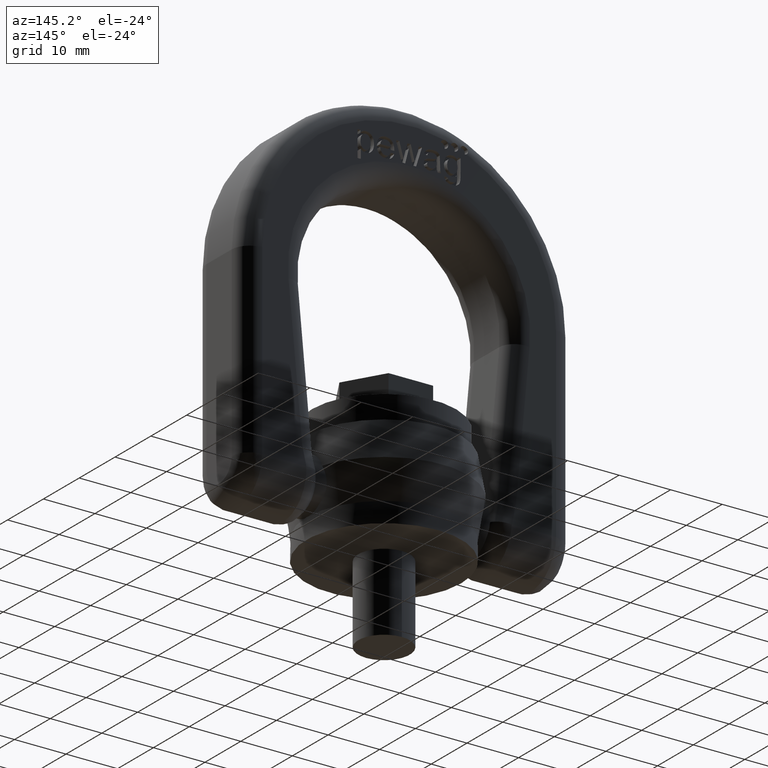
[diagram: clean part render]
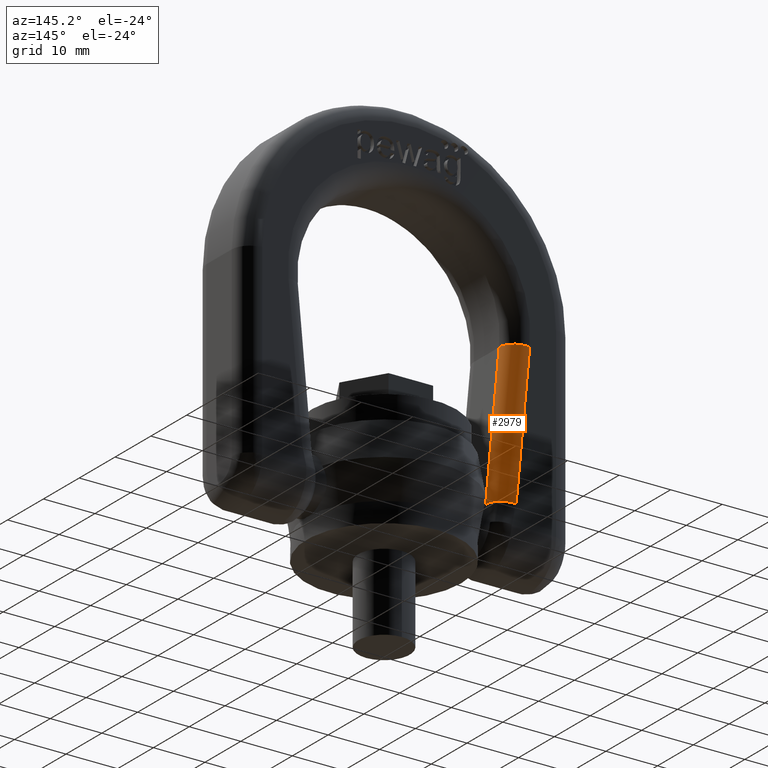
[diagram: same view with one face highlighted and labeled with its STEP entity id]
A machine part, auxiliary view. The second image highlights one B-rep face of the part: STEP entity #2979.
In plain terms, the highlighted cylindrical surface (edge-blend (fillet) strip) has radius 3.5 mm, axis along (0.093, -0, -0.9957).
Its self-contained STEP definition (entity closure, byte-faithful):
#1836=LINE('',#7081,#2118);
#1935=LINE('',#8279,#2262);
#2118=VECTOR('',#5999,1.);
#2262=VECTOR('',#6269,1.);
#2625=FACE_OUTER_BOUND('',#3335,.T.);
#2979=ADVANCED_FACE('',(#2625),#3002,.T.);
#3002=CYLINDRICAL_SURFACE('',#5822,3.5);
#3335=EDGE_LOOP('',(#4541,#4542,#4543,#4544));
#4541=ORIENTED_EDGE('',*,*,#5554,.T.);
#4542=ORIENTED_EDGE('',*,*,#5307,.F.);
#4543=ORIENTED_EDGE('',*,*,#5556,.F.);
#4544=ORIENTED_EDGE('',*,*,#5088,.F.);
#4671=VERTEX_POINT('',#7079);
#4673=VERTEX_POINT('',#7082);
#4805=VERTEX_POINT('',#8278);
#4806=VERTEX_POINT('',#8280);
#5088=EDGE_CURVE('',#4671,#4673,#1836,.T.);
#5307=EDGE_CURVE('',#4805,#4806,#1935,.T.);
#5554=EDGE_CURVE('',#4671,#4806,#5612,.T.);
#5556=EDGE_CURVE('',#4673,#4805,#5614,.T.);
#5612=CIRCLE('',#5818,3.5);
#5614=CIRCLE('',#5821,3.5);
#5818=AXIS2_PLACEMENT_3D('',#9681,#6602,#6603);
#5821=AXIS2_PLACEMENT_3D('',#9702,#6608,#6609);
#5822=AXIS2_PLACEMENT_3D('',#9703,#6610,#6611);
#5999=DIRECTION('',(-0.0930218178345941,2.17941815051107E-16,0.995664070561325));
#6269=DIRECTION('',(0.0930218178345941,-2.17941815051107E-16,-0.995664070561325));
#6602=DIRECTION('',(-0.0930218178348192,2.17941815051635E-16,0.995664070561304));
#6603=DIRECTION('',(-0.995664070561304,0.,-0.0930218178348194));
#6608=DIRECTION('',(-0.0930218178345944,1.84419578486524E-16,0.995664070561325));
#6609=DIRECTION('',(0.995664070561326,0.,0.0930218178345944));
#6610=DIRECTION('',(0.0930218178345941,-2.17941815051107E-16,-0.995664070561325));
#6611=DIRECTION('',(-0.995664070561325,0.,-0.0930218178345944));
#7079=CARTESIAN_POINT('',(-17.2901859316003,3.50000000000005,13.0631189606246));
#7081=CARTESIAN_POINT('',(-16.2519215630301,3.50000000000005,1.95));
#7082=CARTESIAN_POINT('',(-19.9132814112265,3.50000000000005,41.1395636433081));
#8278=CARTESIAN_POINT('',(-23.3981056581912,7.00000000000006,40.813987280887));
#8279=CARTESIAN_POINT('',(-23.3981056581912,7.00000000000006,40.813987280887));
#8280=CARTESIAN_POINT('',(-20.775010178565,7.00000000000005,12.7375425982035));
#9681=CARTESIAN_POINT('',(-20.7750101785654,3.50000000000005,12.737542598202));
#9702=CARTESIAN_POINT('',(-23.3981056581912,3.50000000000005,40.813987280887));
#9703=CARTESIAN_POINT('',(-23.3981056581912,3.50000000000005,40.813987280887));